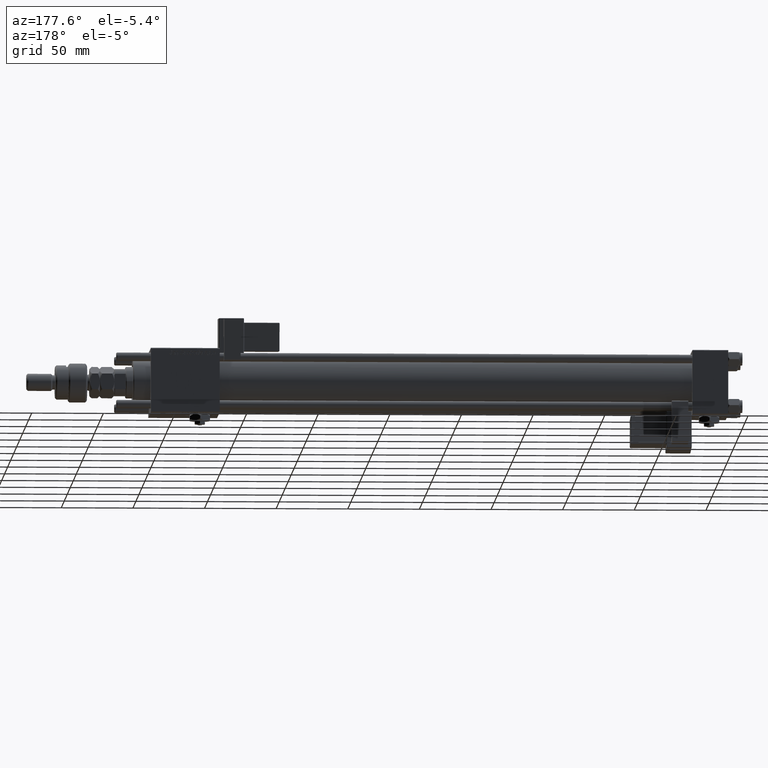
[diagram: clean part render]
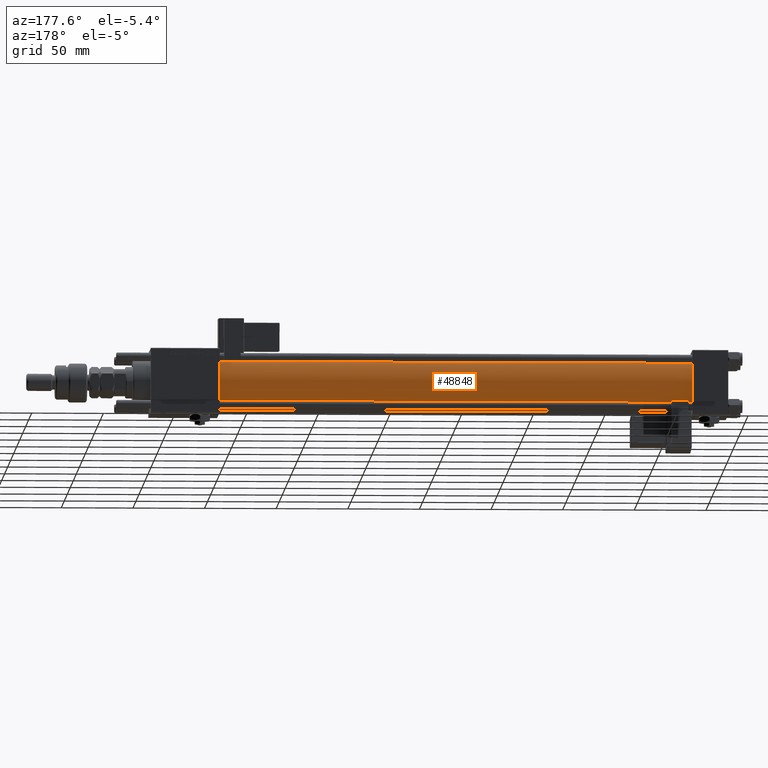
[diagram: same view with one face highlighted and labeled with its STEP entity id]
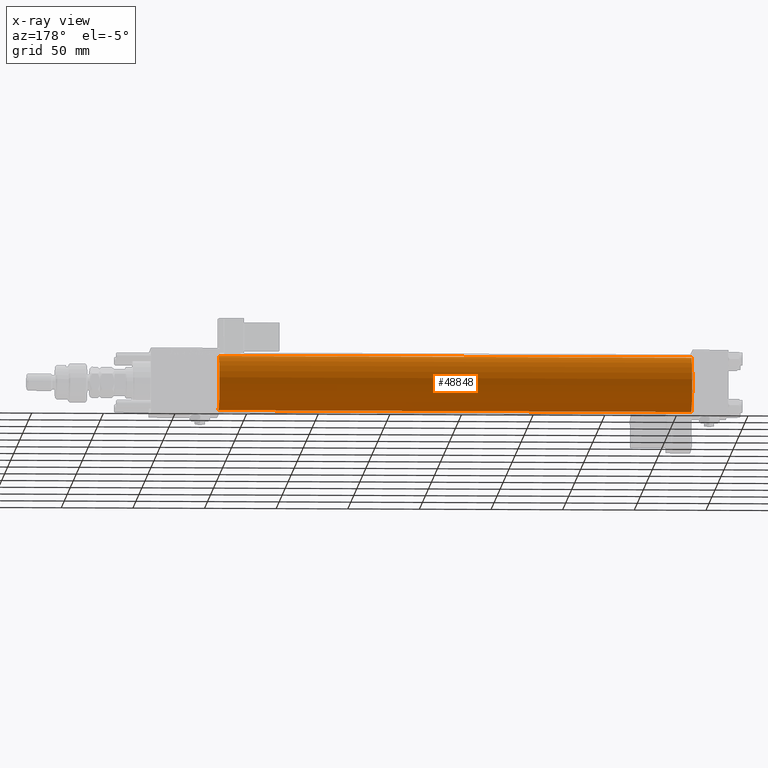
[diagram: x-ray of the same camera — body ghosted, the highlighted face saturated]
A machine part, auxiliary view. The second image highlights one B-rep face of the part: STEP entity #48848.
The next image is the same camera in x-ray: the body ghosted, the highlighted face saturated — about 0% of this face is hidden behind the body in this view.
In plain terms, the highlighted cylindrical surface (edge-blend (fillet) strip) has radius 19 mm, axis along (-1, -0, -0).
Its self-contained STEP definition (entity closure, byte-faithful):
#2211 = EDGE_CURVE ( 'NONE', #40407, #42524, #3230, .T. ) ;
#3230 = LINE ( 'NONE', #27159, #59552 ) ;
#7248 = CIRCLE ( 'NONE', #29951, 19.00000000000000000 ) ;
#10049 = DIRECTION ( 'NONE',  ( -1.000000000000000000, -0.000000000000000000, -0.000000000000000000 ) ) ;
#12036 = CIRCLE ( 'NONE', #44013, 19.00000000000000000 ) ;
#14312 = ORIENTED_EDGE ( 'NONE', *, *, #2211, .F. ) ;
#15166 = AXIS2_PLACEMENT_3D ( 'NONE', #54345, #10049, #20052 ) ;
#15595 = VERTEX_POINT ( 'NONE', #47426 ) ;
#19457 = CARTESIAN_POINT ( 'NONE',  ( 355.0000000000000568, -2.602085213965210642E-15, 0.000000000000000000 ) ) ;
#20052 = DIRECTION ( 'NONE',  ( 0.000000000000000000, 0.000000000000000000, 1.000000000000000000 ) ) ;
#25698 = ORIENTED_EDGE ( 'NONE', *, *, #35373, .T. ) ;
#25767 = VECTOR ( 'NONE', #37605, 1000.000000000000000 ) ;
#27159 = CARTESIAN_POINT ( 'NONE',  ( 355.0000000000000568, -2.602085213965210642E-15, 19.00000000000000000 ) ) ;
#27908 = CARTESIAN_POINT ( 'NONE',  ( 355.0000000000000568, -2.752562955852396712E-16, -19.00000000000000000 ) ) ;
#29951 = AXIS2_PLACEMENT_3D ( 'NONE', #40627, #40945, #39989 ) ;
#34605 = FACE_OUTER_BOUND ( 'NONE', #54595, .T. ) ;
#34643 = DIRECTION ( 'NONE',  ( 0.000000000000000000, 0.000000000000000000, -1.000000000000000000 ) ) ;
#35373 = EDGE_CURVE ( 'NONE', #43531, #42524, #7248, .T. ) ;
#37605 = DIRECTION ( 'NONE',  ( -1.000000000000000000, -0.000000000000000000, -0.000000000000000000 ) ) ;
#39989 = DIRECTION ( 'NONE',  ( 0.000000000000000000, 0.000000000000000000, 1.000000000000000000 ) ) ;
#40407 = VERTEX_POINT ( 'NONE', #57990 ) ;
#40627 = CARTESIAN_POINT ( 'NONE',  ( 25.00000000000002132, -2.602085213965210642E-15, 0.000000000000000000 ) ) ;
#40945 = DIRECTION ( 'NONE',  ( 1.000000000000000000, -0.000000000000000000, 0.000000000000000000 ) ) ;
#42524 = VERTEX_POINT ( 'NONE', #60083 ) ;
#43105 = LINE ( 'NONE', #27908, #25767 ) ;
#43420 = ORIENTED_EDGE ( 'NONE', *, *, #59370, .T. ) ;
#43531 = VERTEX_POINT ( 'NONE', #62310 ) ;
#43738 = EDGE_CURVE ( 'NONE', #15595, #40407, #12036, .T. ) ;
#44013 = AXIS2_PLACEMENT_3D ( 'NONE', #19457, #49530, #34643 ) ;
#46895 = DIRECTION ( 'NONE',  ( -1.000000000000000000, -0.000000000000000000, -0.000000000000000000 ) ) ;
#47426 = CARTESIAN_POINT ( 'NONE',  ( 355.0000000000000568, -2.752562955852396712E-16, -19.00000000000000000 ) ) ;
#48848 = ADVANCED_FACE ( 'NONE', ( #34605 ), #55302, .T. ) ;
#49530 = DIRECTION ( 'NONE',  ( 1.000000000000000000, 0.000000000000000000, 0.000000000000000000 ) ) ;
#54345 = CARTESIAN_POINT ( 'NONE',  ( 355.0000000000000568, -2.602085213965210642E-15, 0.000000000000000000 ) ) ;
#54595 = EDGE_LOOP ( 'NONE', ( #61848, #43420, #25698, #14312 ) ) ;
#55302 = CYLINDRICAL_SURFACE ( 'NONE', #15166, 19.00000000000000000 ) ;
#57990 = CARTESIAN_POINT ( 'NONE',  ( 355.0000000000000568, -2.602085213965210642E-15, 19.00000000000000000 ) ) ;
#59370 = EDGE_CURVE ( 'NONE', #15595, #43531, #43105, .T. ) ;
#59552 = VECTOR ( 'NONE', #46895, 1000.000000000000000 ) ;
#60083 = CARTESIAN_POINT ( 'NONE',  ( 25.00000000000002132, -2.602085213965210642E-15, 19.00000000000000000 ) ) ;
#61848 = ORIENTED_EDGE ( 'NONE', *, *, #43738, .F. ) ;
#62310 = CARTESIAN_POINT ( 'NONE',  ( 25.00000000000002132, -2.752562955852396712E-16, -19.00000000000000000 ) ) ;